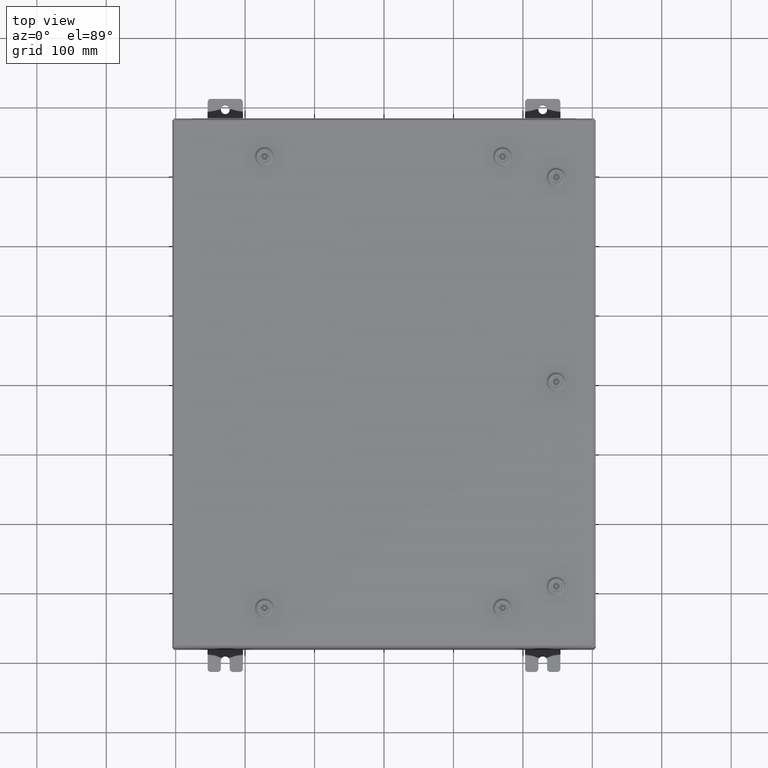
[diagram: clean part render]
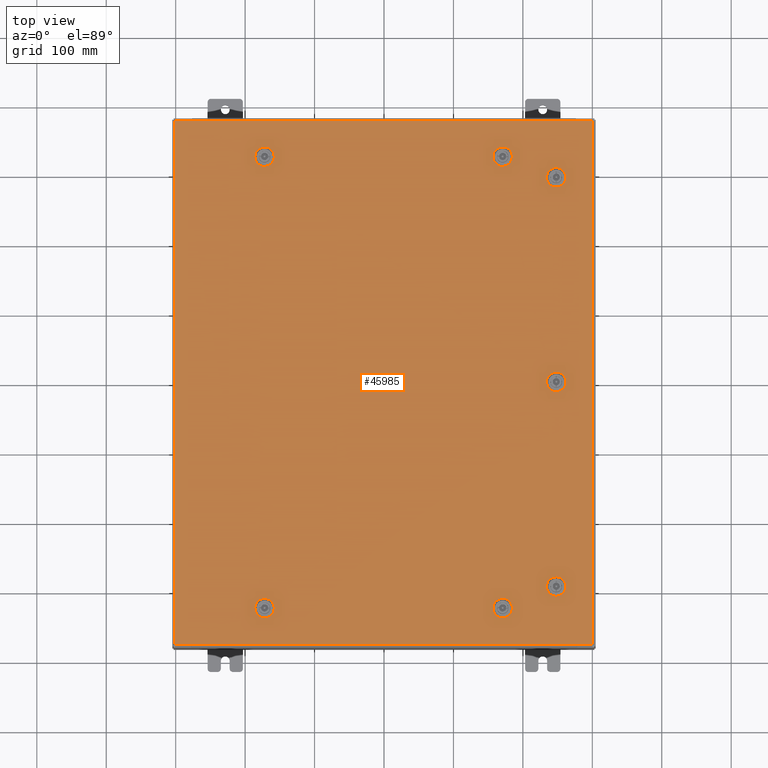
[diagram: same view with one face highlighted and labeled with its STEP entity id]
A machine part, top view. The second image highlights one B-rep face of the part: STEP entity #45985.
In plain terms, the highlighted planar face has unit normal (0, 0, -1).
Its self-contained STEP definition (entity closure, byte-faithful):
#82 = EDGE_CURVE ( 'NONE', #48384, #26278, #12245, .T. ) ;
#359 = CARTESIAN_POINT ( 'NONE',  ( -6.749999999999985800, -12.78779999999999900, -2.521317385144147400E-013 ) ) ;
#530 = VERTEX_POINT ( 'NONE', #59233 ) ;
#881 = ORIENTED_EDGE ( 'NONE', *, *, #32079, .F. ) ;
#1466 = VERTEX_POINT ( 'NONE', #47459 ) ;
#2387 = CARTESIAN_POINT ( 'NONE',  ( 6.749999999999985800, -12.78779999999999700, -2.049967404400325100E-013 ) ) ;
#2489 = DIRECTION ( 'NONE',  ( 1.000000000000000000, 0.0000000000000000000, 6.982962677686287200E-015 ) ) ;
#3176 = CIRCLE ( 'NONE', #60382, 0.4424999999999972800 ) ;
#3798 = DIRECTION ( 'NONE',  ( 0.0000000000000000000, 0.0000000000000000000, 1.000000000000000000 ) ) ;
#3951 = CARTESIAN_POINT ( 'NONE',  ( -6.749999999999984900, 12.78779999999999400, 0.0000000000000000000 ) ) ;
#4227 = AXIS2_PLACEMENT_3D ( 'NONE', #23660, #58352, #28643 ) ;
#4786 = EDGE_CURVE ( 'NONE', #39994, #11003, #5002, .T. ) ;
#4981 = VECTOR ( 'NONE', #46346, 39.37007874015748100 ) ;
#5002 = CIRCLE ( 'NONE', #50187, 0.4424999999999972800 ) ;
#5339 = DIRECTION ( 'NONE',  ( 0.0000000000000000000, 1.000000000000000000, 6.982962677686304600E-015 ) ) ;
#5466 = VECTOR ( 'NONE', #51454, 39.37007874015748100 ) ;
#5485 = AXIS2_PLACEMENT_3D ( 'NONE', #359, #34932, #5339 ) ;
#5794 = VERTEX_POINT ( 'NONE', #43162 ) ;
#6338 = EDGE_CURVE ( 'NONE', #7258, #47015, #17253, .T. ) ;
#6611 = CARTESIAN_POINT ( 'NONE',  ( 6.550547624732093500, 13.18279999999999000, -4.574222958191066700E-014 ) ) ;
#6703 = VERTEX_POINT ( 'NONE', #24556 ) ;
#6708 = AXIS2_PLACEMENT_3D ( 'NONE', #38981, #9372, #43984 ) ;
#6842 = CARTESIAN_POINT ( 'NONE',  ( 9.392800000000015400, 0.1994523752679053800, 0.0000000000000000000 ) ) ;
#6923 = CARTESIAN_POINT ( 'NONE',  ( -6.307499999999988600, -12.78779999999999900, -2.521317385144147400E-013 ) ) ;
#6958 = CARTESIAN_POINT ( 'NONE',  ( -6.550547624732093500, 13.18279999999998400, 0.0000000000000000000 ) ) ;
#7015 = EDGE_LOOP ( 'NONE', ( #14980, #42346, #57597, #63285 ) ) ;
#7258 = VERTEX_POINT ( 'NONE', #51317 ) ;
#7358 = DIRECTION ( 'NONE',  ( 1.000000000000000000, 0.0000000000000000000, 6.982962677686287200E-015 ) ) ;
#7382 = LINE ( 'NONE', #44425, #33662 ) ;
#7387 = LINE ( 'NONE', #36459, #32158 ) ;
#7422 = DIRECTION ( 'NONE',  ( 1.000000000000000000, -0.0000000000000000000, -0.0000000000000000000 ) ) ;
#7499 = ORIENTED_EDGE ( 'NONE', *, *, #11023, .T. ) ;
#7611 = FACE_BOUND ( 'NONE', #45257, .T. ) ;
#7636 = VERTEX_POINT ( 'NONE', #47134 ) ;
#8490 = VECTOR ( 'NONE', #28641, 39.37007874015748100 ) ;
#8811 = VERTEX_POINT ( 'NONE', #21408 ) ;
#8928 = DIRECTION ( 'NONE',  ( 1.000000000000000000, 0.0000000000000000000, 0.0000000000000000000 ) ) ;
#9134 = VERTEX_POINT ( 'NONE', #63610 ) ;
#9169 = FACE_BOUND ( 'NONE', #51769, .T. ) ;
#9372 = DIRECTION ( 'NONE',  ( 6.982962677686266700E-015, -0.0000000000000000000, 1.000000000000000000 ) ) ;
#9772 = ORIENTED_EDGE ( 'NONE', *, *, #10142, .F. ) ;
#10051 = LINE ( 'NONE', #48350, #8490 ) ;
#10142 = EDGE_CURVE ( 'NONE', #36488, #10847, #3176, .T. ) ;
#10553 = VERTEX_POINT ( 'NONE', #44556 ) ;
#10847 = VERTEX_POINT ( 'NONE', #22070 ) ;
#10907 = ORIENTED_EDGE ( 'NONE', *, *, #34167, .F. ) ;
#11003 = VERTEX_POINT ( 'NONE', #24829 ) ;
#11023 = EDGE_CURVE ( 'NONE', #7636, #54102, #45731, .T. ) ;
#11393 = CARTESIAN_POINT ( 'NONE',  ( 9.787800000000009600, -11.56250000000001600, -2.429631085186127900E-013 ) ) ;
#11444 = EDGE_CURVE ( 'NONE', #5794, #37747, #20151, .T. ) ;
#12245 = CIRCLE ( 'NONE', #18465, 0.4424999999999983400 ) ;
#12289 = VERTEX_POINT ( 'NONE', #22757 ) ;
#12565 = CIRCLE ( 'NONE', #13147, 0.4424999999999972800 ) ;
#12867 = CARTESIAN_POINT ( 'NONE',  ( 6.749999999999985800, -12.78779999999999700, -2.049967404400325100E-013 ) ) ;
#13052 = AXIS2_PLACEMENT_3D ( 'NONE', #11393, #46002, #16375 ) ;
#13096 = CARTESIAN_POINT ( 'NONE',  ( 6.550547624732099700, 12.39280000000000100, -4.574222958191072400E-014 ) ) ;
#13147 = AXIS2_PLACEMENT_3D ( 'NONE', #33396, #3798, #38372 ) ;
#13164 = VERTEX_POINT ( 'NONE', #19005 ) ;
#13174 = CIRCLE ( 'NONE', #21400, 0.4424999999999972800 ) ;
#13315 = ORIENTED_EDGE ( 'NONE', *, *, #11444, .F. ) ;
#13364 = CARTESIAN_POINT ( 'NONE',  ( 6.949452375267867400, -13.18279999999999300, -2.063622422052470700E-013 ) ) ;
#13554 = ORIENTED_EDGE ( 'NONE', *, *, #35107, .F. ) ;
#13626 = DIRECTION ( 'NONE',  ( 0.0000000000000000000, -1.000000000000000000, 0.0000000000000000000 ) ) ;
#13801 = CARTESIAN_POINT ( 'NONE',  ( 6.749999999999984900, 12.78779999999999700, -4.713499807438223100E-014 ) ) ;
#14106 = AXIS2_PLACEMENT_3D ( 'NONE', #46544, #16912, #51523 ) ;
#14356 = LINE ( 'NONE', #50060, #39076 ) ;
#14813 = DIRECTION ( 'NONE',  ( -1.000000000000000000, -0.0000000000000000000, -0.0000000000000000000 ) ) ;
#14980 = ORIENTED_EDGE ( 'NONE', *, *, #52313, .F. ) ;
#15139 = DIRECTION ( 'NONE',  ( -1.000000000000000000, -0.0000000000000000000, -6.982962677686265900E-015 ) ) ;
#15533 = CARTESIAN_POINT ( 'NONE',  ( 10.18280000000000200, 0.1994523752679009100, 0.0000000000000000000 ) ) ;
#15733 = LINE ( 'NONE', #57852, #53648 ) ;
#15877 = DIRECTION ( 'NONE',  ( -5.478697338139220100E-015, 1.000000000000000000, -0.0000000000000000000 ) ) ;
#15962 = DIRECTION ( 'NONE',  ( 6.982962677686266700E-015, -0.0000000000000000000, 1.000000000000000000 ) ) ;
#16245 = VERTEX_POINT ( 'NONE', #6611 ) ;
#16375 = DIRECTION ( 'NONE',  ( 0.0000000000000000000, 1.000000000000000000, 6.982962677686270700E-015 ) ) ;
#16385 = AXIS2_PLACEMENT_3D ( 'NONE', #61836, #32132, #2489 ) ;
#16912 = DIRECTION ( 'NONE',  ( -0.0000000000000000000, -6.982962677686266700E-015, 1.000000000000000000 ) ) ;
#16983 = DIRECTION ( 'NONE',  ( -1.000000000000000000, 0.0000000000000000000, 6.982962677686269100E-015 ) ) ;
#17253 = CIRCLE ( 'NONE', #62748, 0.4424999999999972800 ) ;
#17593 = CARTESIAN_POINT ( 'NONE',  ( 9.787800000000009600, -11.56250000000001600, -2.429631085186127900E-013 ) ) ;
#17813 = DIRECTION ( 'NONE',  ( 1.000000000000000000, 0.0000000000000000000, 6.982962677686287200E-015 ) ) ;
#18330 = VERTEX_POINT ( 'NONE', #31737 ) ;
#18465 = AXIS2_PLACEMENT_3D ( 'NONE', #46502, #20133, #58160 ) ;
#18487 = DIRECTION ( 'NONE',  ( 0.0000000000000000000, 0.0000000000000000000, -1.000000000000000000 ) ) ;
#18506 = VECTOR ( 'NONE', #45102, 39.37007874015748100 ) ;
#18822 = VECTOR ( 'NONE', #15139, 39.37007874015748100 ) ;
#18993 = CARTESIAN_POINT ( 'NONE',  ( -6.550547624732101500, -12.39280000000000300, -2.493734682567286900E-013 ) ) ;
#19005 = CARTESIAN_POINT ( 'NONE',  ( -6.949452375267865600, 13.18279999999999000, 0.0000000000000000000 ) ) ;
#19856 = ORIENTED_EDGE ( 'NONE', *, *, #43259, .F. ) ;
#19888 = ORIENTED_EDGE ( 'NONE', *, *, #57942, .T. ) ;
#20133 = DIRECTION ( 'NONE',  ( -0.0000000000000000000, -6.982962677686266700E-015, 1.000000000000000000 ) ) ;
#20151 = CIRCLE ( 'NONE', #32167, 0.4424999999999972800 ) ;
#20311 = CARTESIAN_POINT ( 'NONE',  ( 6.550547624732099700, 12.39280000000000100, -4.574222958191072400E-014 ) ) ;
#20338 = CARTESIAN_POINT ( 'NONE',  ( -6.550547624732093500, 13.18279999999998400, 0.0000000000000000000 ) ) ;
#20390 = ORIENTED_EDGE ( 'NONE', *, *, #42256, .F. ) ;
#20486 = CARTESIAN_POINT ( 'NONE',  ( 7.192499999999982100, 12.78779999999999700, -5.022495905925838200E-014 ) ) ;
#20524 = DIRECTION ( 'NONE',  ( 0.0000000000000000000, 0.0000000000000000000, 1.000000000000000000 ) ) ;
#20738 = LINE ( 'NONE', #20874, #57156 ) ;
#20790 = FACE_BOUND ( 'NONE', #42442, .T. ) ;
#20874 = CARTESIAN_POINT ( 'NONE',  ( 6.550547624732094400, -13.18279999999999000, -2.091477791901900700E-013 ) ) ;
#21365 = DIRECTION ( 'NONE',  ( 0.0000000000000000000, 0.0000000000000000000, 1.000000000000000000 ) ) ;
#21400 = AXIS2_PLACEMENT_3D ( 'NONE', #3951, #38533, #8928 ) ;
#21408 = CARTESIAN_POINT ( 'NONE',  ( 6.949452375267869200, 12.39280000000000100, -4.852776656685374400E-014 ) ) ;
#21714 = LINE ( 'NONE', #41467, #5466 ) ;
#21991 = VERTEX_POINT ( 'NONE', #55852 ) ;
#22070 = CARTESIAN_POINT ( 'NONE',  ( 10.18280000000000700, -0.1994523752678676000, 0.0000000000000000000 ) ) ;
#22179 = ORIENTED_EDGE ( 'NONE', *, *, #57697, .F. ) ;
#22227 = AXIS2_PLACEMENT_3D ( 'NONE', #12867, #47492, #17813 ) ;
#22266 = CARTESIAN_POINT ( 'NONE',  ( 9.787800000000007800, 1.529834876451990400E-014, 0.0000000000000000000 ) ) ;
#22296 = DIRECTION ( 'NONE',  ( 1.000000000000000000, 0.0000000000000000000, 0.0000000000000000000 ) ) ;
#22516 = VERTEX_POINT ( 'NONE', #40554 ) ;
#22566 = EDGE_CURVE ( 'NONE', #24051, #1466, #23605, .T. ) ;
#22585 = DIRECTION ( 'NONE',  ( 0.0000000000000000000, 1.000000000000000000, 6.982962677686304600E-015 ) ) ;
#22757 = CARTESIAN_POINT ( 'NONE',  ( -11.84980000000000000, 14.84980000000000000, -2.048885995248197400E-016 ) ) ;
#23188 = DIRECTION ( 'NONE',  ( 0.0000000000000000000, 0.0000000000000000000, 1.000000000000000000 ) ) ;
#23511 = LINE ( 'NONE', #15533, #63074 ) ;
#23605 = CIRCLE ( 'NONE', #13052, 0.4424999999999983400 ) ;
#23660 = CARTESIAN_POINT ( 'NONE',  ( 6.749999999999984900, 12.78779999999999700, -4.713499807438223100E-014 ) ) ;
#23980 = CARTESIAN_POINT ( 'NONE',  ( -6.550547624732094400, -13.18279999999999100, -2.548900087721007400E-013 ) ) ;
#24051 = VERTEX_POINT ( 'NONE', #38323 ) ;
#24176 = CARTESIAN_POINT ( 'NONE',  ( 10.18280000000000600, -11.76195237526789900, -2.443558770110843000E-013 ) ) ;
#24556 = CARTESIAN_POINT ( 'NONE',  ( -6.550547624732094400, -13.18279999999999100, -2.548900087721007400E-013 ) ) ;
#24668 = ORIENTED_EDGE ( 'NONE', *, *, #59551, .F. ) ;
#24829 = CARTESIAN_POINT ( 'NONE',  ( 6.949452375267865600, 13.18279999999999300, 0.0000000000000000000 ) ) ;
#25088 = CIRCLE ( 'NONE', #5485, 0.4424999999999961700 ) ;
#25232 = ORIENTED_EDGE ( 'NONE', *, *, #6338, .F. ) ;
#25638 = VECTOR ( 'NONE', #51214, 39.37007874015748100 ) ;
#25847 = EDGE_CURVE ( 'NONE', #32981, #30835, #12565, .T. ) ;
#26048 = CARTESIAN_POINT ( 'NONE',  ( -6.949452375267867400, -13.18279999999999500, 0.0000000000000000000 ) ) ;
#26204 = CARTESIAN_POINT ( 'NONE',  ( -6.550547624732099700, 12.39279999999999800, 0.0000000000000000000 ) ) ;
#26278 = VERTEX_POINT ( 'NONE', #26048 ) ;
#26322 = DIRECTION ( 'NONE',  ( -1.000000000000000000, -1.095739467627835000E-014, 6.982962677686269100E-015 ) ) ;
#26323 = ORIENTED_EDGE ( 'NONE', *, *, #48693, .F. ) ;
#26362 = ORIENTED_EDGE ( 'NONE', *, *, #44838, .T. ) ;
#26465 = CARTESIAN_POINT ( 'NONE',  ( 9.787800000000007800, 1.529834876451990400E-014, 0.0000000000000000000 ) ) ;
#26881 = CARTESIAN_POINT ( 'NONE',  ( -6.949452375267869200, -12.39280000000000100, -2.493734682567286900E-013 ) ) ;
#27191 = LINE ( 'NONE', #6842, #25638 ) ;
#27501 = EDGE_CURVE ( 'NONE', #21991, #37275, #20738, .T. ) ;
#27862 = CARTESIAN_POINT ( 'NONE',  ( 9.392800000000015400, 11.76195237526790500, 0.0000000000000000000 ) ) ;
#28249 = CARTESIAN_POINT ( 'NONE',  ( 0.0000000000000000000, 0.0000000000000000000, 0.0000000000000000000 ) ) ;
#28292 = CIRCLE ( 'NONE', #41437, 0.4424999999999972800 ) ;
#28319 = ORIENTED_EDGE ( 'NONE', *, *, #82, .F. ) ;
#28443 = DIRECTION ( 'NONE',  ( 1.000000000000000000, -0.0000000000000000000, -0.0000000000000000000 ) ) ;
#28641 = DIRECTION ( 'NONE',  ( 8.218046007208784700E-015, -1.000000000000000000, -6.982962677686345600E-015 ) ) ;
#28643 = DIRECTION ( 'NONE',  ( -1.000000000000000000, 0.0000000000000000000, 6.982962677686269100E-015 ) ) ;
#29163 = DIRECTION ( 'NONE',  ( 5.478697338139220100E-015, 1.000000000000000000, 6.982962677686306200E-015 ) ) ;
#29309 = VERTEX_POINT ( 'NONE', #13096 ) ;
#29968 = LINE ( 'NONE', #37037, #41562 ) ;
#30023 = EDGE_CURVE ( 'NONE', #12289, #7636, #59359, .T. ) ;
#30482 = EDGE_CURVE ( 'NONE', #11003, #16245, #7387, .T. ) ;
#30605 = ORIENTED_EDGE ( 'NONE', *, *, #38093, .F. ) ;
#30835 = VERTEX_POINT ( 'NONE', #52525 ) ;
#31082 = CIRCLE ( 'NONE', #54305, 0.4424999999999972800 ) ;
#31264 = CIRCLE ( 'NONE', #56585, 0.4424999999999961700 ) ;
#31444 = DIRECTION ( 'NONE',  ( 1.000000000000000000, 0.0000000000000000000, 0.0000000000000000000 ) ) ;
#31737 = CARTESIAN_POINT ( 'NONE',  ( 10.18280000000000600, -11.76195237526789900, -2.443558770110843000E-013 ) ) ;
#31740 = EDGE_CURVE ( 'NONE', #8811, #39994, #62326, .T. ) ;
#32079 = EDGE_CURVE ( 'NONE', #46889, #56828, #25088, .T. ) ;
#32132 = DIRECTION ( 'NONE',  ( -6.982962677686266700E-015, -6.982962677686266700E-015, 1.000000000000000000 ) ) ;
#32158 = VECTOR ( 'NONE', #26322, 39.37007874015748100 ) ;
#32167 = AXIS2_PLACEMENT_3D ( 'NONE', #2387, #36972, #7358 ) ;
#32482 = EDGE_CURVE ( 'NONE', #16245, #29309, #52161, .T. ) ;
#32727 = CIRCLE ( 'NONE', #16385, 0.4424999999999972800 ) ;
#32981 = VERTEX_POINT ( 'NONE', #35733 ) ;
#33296 = VERTEX_POINT ( 'NONE', #20338 ) ;
#33375 = CARTESIAN_POINT ( 'NONE',  ( -11.84980000000000000, -14.84979999999999500, -2.048885995248197400E-016 ) ) ;
#33396 = CARTESIAN_POINT ( 'NONE',  ( 9.787800000000007800, 11.56250000000001600, 0.0000000000000000000 ) ) ;
#33600 = VECTOR ( 'NONE', #35212, 39.37007874015748100 ) ;
#33662 = VECTOR ( 'NONE', #14813, 39.37007874015748100 ) ;
#33903 = FACE_BOUND ( 'NONE', #41279, .T. ) ;
#34072 = CARTESIAN_POINT ( 'NONE',  ( 11.84980000000000000, 14.84980000000000200, 8.878505979408856000E-016 ) ) ;
#34167 = EDGE_CURVE ( 'NONE', #13164, #530, #40394, .T. ) ;
#34320 = ORIENTED_EDGE ( 'NONE', *, *, #62316, .F. ) ;
#34932 = DIRECTION ( 'NONE',  ( -0.0000000000000000000, -6.982962677686266700E-015, 1.000000000000000000 ) ) ;
#35107 = EDGE_CURVE ( 'NONE', #22516, #36488, #27191, .T. ) ;
#35212 = DIRECTION ( 'NONE',  ( 1.000000000000000000, 0.0000000000000000000, -6.982962677686248600E-015 ) ) ;
#35531 = LINE ( 'NONE', #24176, #58840 ) ;
#35733 = CARTESIAN_POINT ( 'NONE',  ( 9.392800000000011800, 11.36304762473213300, 0.0000000000000000000 ) ) ;
#36459 = CARTESIAN_POINT ( 'NONE',  ( 6.550547624732093500, 13.18279999999999000, -4.574222958191066700E-014 ) ) ;
#36480 = VERTEX_POINT ( 'NONE', #34072 ) ;
#36488 = VERTEX_POINT ( 'NONE', #39060 ) ;
#36972 = DIRECTION ( 'NONE',  ( -6.982962677686266700E-015, -6.982962677686266700E-015, 1.000000000000000000 ) ) ;
#37037 = CARTESIAN_POINT ( 'NONE',  ( -6.550547624732099700, 12.39279999999999800, 0.0000000000000000000 ) ) ;
#37259 = LINE ( 'NONE', #23980, #62129 ) ;
#37275 = VERTEX_POINT ( 'NONE', #13364 ) ;
#37747 = VERTEX_POINT ( 'NONE', #39432 ) ;
#38093 = EDGE_CURVE ( 'NONE', #10553, #33296, #13174, .T. ) ;
#38159 = PLANE ( 'NONE',  #41921 ) ;
#38323 = CARTESIAN_POINT ( 'NONE',  ( 10.18280000000000700, -11.36304762473213100, -2.415703400261412700E-013 ) ) ;
#38372 = DIRECTION ( 'NONE',  ( 1.000000000000000000, 0.0000000000000000000, 0.0000000000000000000 ) ) ;
#38533 = DIRECTION ( 'NONE',  ( 0.0000000000000000000, 0.0000000000000000000, 1.000000000000000000 ) ) ;
#38744 = ORIENTED_EDGE ( 'NONE', *, *, #30482, .F. ) ;
#38981 = CARTESIAN_POINT ( 'NONE',  ( 6.749999999999984900, 12.78779999999999700, -4.713499807438223100E-014 ) ) ;
#39060 = CARTESIAN_POINT ( 'NONE',  ( 9.392800000000011800, -0.1994523752678671000, 0.0000000000000000000 ) ) ;
#39076 = VECTOR ( 'NONE', #15877, 39.37007874015748100 ) ;
#39432 = CARTESIAN_POINT ( 'NONE',  ( 6.949452375267869200, -12.39280000000000100, 0.0000000000000000000 ) ) ;
#39573 = ORIENTED_EDGE ( 'NONE', *, *, #52095, .F. ) ;
#39923 = EDGE_CURVE ( 'NONE', #37747, #9134, #46732, .T. ) ;
#39994 = VERTEX_POINT ( 'NONE', #20486 ) ;
#40016 = EDGE_LOOP ( 'NONE', ( #53506, #10907, #24668, #30605, #56634 ) ) ;
#40077 = CARTESIAN_POINT ( 'NONE',  ( 11.84980000000000000, -14.84979999999999300, -2.048885995248197400E-016 ) ) ;
#40394 = CIRCLE ( 'NONE', #45753, 0.4424999999999972800 ) ;
#40554 = CARTESIAN_POINT ( 'NONE',  ( 9.392800000000015400, 0.1994523752679053200, 0.0000000000000000000 ) ) ;
#41279 = EDGE_LOOP ( 'NONE', ( #55493, #13315, #39573, #55368, #34320 ) ) ;
#41437 = AXIS2_PLACEMENT_3D ( 'NONE', #26465, #61173, #31444 ) ;
#41467 = CARTESIAN_POINT ( 'NONE',  ( -6.550547624732101500, -12.39280000000000300, -2.493734682567286900E-013 ) ) ;
#41562 = VECTOR ( 'NONE', #7422, 39.37007874015748100 ) ;
#41921 = AXIS2_PLACEMENT_3D ( 'NONE', #28249, #18487, #53142 ) ;
#42256 = EDGE_CURVE ( 'NONE', #26278, #6703, #37259, .T. ) ;
#42346 = ORIENTED_EDGE ( 'NONE', *, *, #22566, .F. ) ;
#42442 = EDGE_LOOP ( 'NONE', ( #20390, #28319, #52772, #881, #19856 ) ) ;
#42471 = EDGE_CURVE ( 'NONE', #45596, #10553, #31082, .T. ) ;
#42624 = ORIENTED_EDGE ( 'NONE', *, *, #32482, .F. ) ;
#42712 = EDGE_LOOP ( 'NONE', ( #7499, #26362, #19888, #44010 ) ) ;
#42891 = LINE ( 'NONE', #6958, #4981 ) ;
#43076 = DIRECTION ( 'NONE',  ( -8.218046007208784700E-015, -1.000000000000000000, 0.0000000000000000000 ) ) ;
#43162 = CARTESIAN_POINT ( 'NONE',  ( 7.192499999999983000, -12.78779999999999700, -2.019067794551563600E-013 ) ) ;
#43259 = EDGE_CURVE ( 'NONE', #6703, #46889, #63613, .T. ) ;
#43832 = ORIENTED_EDGE ( 'NONE', *, *, #4786, .F. ) ;
#43867 = EDGE_CURVE ( 'NONE', #56828, #48384, #21714, .T. ) ;
#43984 = DIRECTION ( 'NONE',  ( -1.000000000000000000, 0.0000000000000000000, 6.982962677686269100E-015 ) ) ;
#44010 = ORIENTED_EDGE ( 'NONE', *, *, #30023, .T. ) ;
#44389 = VERTEX_POINT ( 'NONE', #52493 ) ;
#44425 = CARTESIAN_POINT ( 'NONE',  ( 11.84980000000000000, 14.84980000000000200, 8.878505979408856000E-016 ) ) ;
#44556 = CARTESIAN_POINT ( 'NONE',  ( -6.307499999999987700, 12.78779999999999400, 0.0000000000000000000 ) ) ;
#44742 = CARTESIAN_POINT ( 'NONE',  ( 6.550547624732101500, -12.39280000000000100, -2.036312386748179800E-013 ) ) ;
#44838 = EDGE_CURVE ( 'NONE', #54102, #36480, #56502, .T. ) ;
#44920 = DIRECTION ( 'NONE',  ( -5.478697338139235000E-015, 1.000000000000000000, -0.0000000000000000000 ) ) ;
#45102 = DIRECTION ( 'NONE',  ( 0.0000000000000000000, 1.000000000000000000, 0.0000000000000000000 ) ) ;
#45257 = EDGE_LOOP ( 'NONE', ( #38744, #43832, #52391, #63016, #42624 ) ) ;
#45557 = FACE_OUTER_BOUND ( 'NONE', #42712, .T. ) ;
#45596 = VERTEX_POINT ( 'NONE', #26204 ) ;
#45731 = LINE ( 'NONE', #33375, #54253 ) ;
#45753 = AXIS2_PLACEMENT_3D ( 'NONE', #52840, #23188, #57869 ) ;
#45985 = ADVANCED_FACE ( 'NONE', ( #47114, #9169, #60343, #33903, #20790, #7611, #58777, #45557 ), #38159, .F. ) ;
#46002 = DIRECTION ( 'NONE',  ( -0.0000000000000000000, -6.982962677686266700E-015, 1.000000000000000000 ) ) ;
#46346 = DIRECTION ( 'NONE',  ( -1.000000000000000000, 1.095739467627835000E-014, 0.0000000000000000000 ) ) ;
#46502 = CARTESIAN_POINT ( 'NONE',  ( -6.749999999999985800, -12.78779999999999900, -2.521317385144147400E-013 ) ) ;
#46544 = CARTESIAN_POINT ( 'NONE',  ( -6.749999999999985800, -12.78779999999999900, -2.521317385144147400E-013 ) ) ;
#46732 = LINE ( 'NONE', #44742, #18822 ) ;
#46752 = ORIENTED_EDGE ( 'NONE', *, *, #58214, .F. ) ;
#46889 = VERTEX_POINT ( 'NONE', #6923 ) ;
#47015 = VERTEX_POINT ( 'NONE', #27862 ) ;
#47114 = FACE_BOUND ( 'NONE', #7015, .T. ) ;
#47134 = CARTESIAN_POINT ( 'NONE',  ( -11.84980000000000000, -14.84979999999999500, -2.048885995248197400E-016 ) ) ;
#47459 = CARTESIAN_POINT ( 'NONE',  ( 9.392800000000013600, -11.36304762473213300, 0.0000000000000000000 ) ) ;
#47492 = DIRECTION ( 'NONE',  ( -6.982962677686266700E-015, -6.982962677686266700E-015, 1.000000000000000000 ) ) ;
#47825 = ORIENTED_EDGE ( 'NONE', *, *, #59851, .F. ) ;
#48252 = CARTESIAN_POINT ( 'NONE',  ( -11.84980000000000000, 14.84980000000000000, -2.048885995248197400E-016 ) ) ;
#48350 = CARTESIAN_POINT ( 'NONE',  ( 9.392800000000017100, -11.76195237526790500, -2.443558770110843500E-013 ) ) ;
#48384 = VERTEX_POINT ( 'NONE', #26881 ) ;
#48669 = DIRECTION ( 'NONE',  ( 1.000000000000000000, 1.095739467627835000E-014, 7.785697190085976300E-029 ) ) ;
#48677 = CARTESIAN_POINT ( 'NONE',  ( 9.787800000000007800, 11.56250000000001600, 0.0000000000000000000 ) ) ;
#48693 = EDGE_CURVE ( 'NONE', #47015, #32981, #15733, .T. ) ;
#50060 = CARTESIAN_POINT ( 'NONE',  ( 10.18280000000000200, 11.76195237526789900, 0.0000000000000000000 ) ) ;
#50187 = AXIS2_PLACEMENT_3D ( 'NONE', #13801, #15962, #16983 ) ;
#51022 = CARTESIAN_POINT ( 'NONE',  ( -6.749999999999984900, 12.78779999999999400, 0.0000000000000000000 ) ) ;
#51214 = DIRECTION ( 'NONE',  ( -8.218046007208770500E-015, -1.000000000000000000, 0.0000000000000000000 ) ) ;
#51317 = CARTESIAN_POINT ( 'NONE',  ( 10.18280000000000200, 11.76195237526789900, 0.0000000000000000000 ) ) ;
#51454 = DIRECTION ( 'NONE',  ( -1.000000000000000000, 5.478697338139250000E-015, 7.785697190086082800E-029 ) ) ;
#51523 = DIRECTION ( 'NONE',  ( 0.0000000000000000000, 1.000000000000000000, 6.982962677686304600E-015 ) ) ;
#51769 = EDGE_LOOP ( 'NONE', ( #46752, #60180, #26323, #25232 ) ) ;
#52095 = EDGE_CURVE ( 'NONE', #37275, #5794, #55771, .T. ) ;
#52161 = CIRCLE ( 'NONE', #4227, 0.4424999999999972800 ) ;
#52247 = DIRECTION ( 'NONE',  ( -0.0000000000000000000, -6.982962677686266700E-015, 1.000000000000000000 ) ) ;
#52313 = EDGE_CURVE ( 'NONE', #1466, #60111, #10051, .T. ) ;
#52391 = ORIENTED_EDGE ( 'NONE', *, *, #31740, .F. ) ;
#52493 = CARTESIAN_POINT ( 'NONE',  ( 10.18280000000000200, 0.1994523752679009100, 0.0000000000000000000 ) ) ;
#52525 = CARTESIAN_POINT ( 'NONE',  ( 10.18280000000000600, 11.36304762473213100, 0.0000000000000000000 ) ) ;
#52772 = ORIENTED_EDGE ( 'NONE', *, *, #43867, .F. ) ;
#52840 = CARTESIAN_POINT ( 'NONE',  ( -6.749999999999984900, 12.78779999999999400, 0.0000000000000000000 ) ) ;
#52865 = EDGE_CURVE ( 'NONE', #18330, #24051, #35531, .T. ) ;
#53142 = DIRECTION ( 'NONE',  ( -1.000000000000000000, 0.0000000000000000000, -0.0000000000000000000 ) ) ;
#53506 = ORIENTED_EDGE ( 'NONE', *, *, #55448, .F. ) ;
#53648 = VECTOR ( 'NONE', #43076, 39.37007874015748100 ) ;
#54102 = VERTEX_POINT ( 'NONE', #61139 ) ;
#54253 = VECTOR ( 'NONE', #28443, 39.37007874015748100 ) ;
#54305 = AXIS2_PLACEMENT_3D ( 'NONE', #51022, #21365, #56011 ) ;
#55368 = ORIENTED_EDGE ( 'NONE', *, *, #27501, .F. ) ;
#55448 = EDGE_CURVE ( 'NONE', #530, #45596, #29968, .T. ) ;
#55493 = ORIENTED_EDGE ( 'NONE', *, *, #39923, .F. ) ;
#55771 = CIRCLE ( 'NONE', #22227, 0.4424999999999972800 ) ;
#55852 = CARTESIAN_POINT ( 'NONE',  ( 6.550547624732094400, -13.18279999999999000, -2.091477791901901000E-013 ) ) ;
#56011 = DIRECTION ( 'NONE',  ( 1.000000000000000000, 0.0000000000000000000, 0.0000000000000000000 ) ) ;
#56502 = LINE ( 'NONE', #40077, #18506 ) ;
#56585 = AXIS2_PLACEMENT_3D ( 'NONE', #17593, #52247, #22585 ) ;
#56634 = ORIENTED_EDGE ( 'NONE', *, *, #42471, .F. ) ;
#56828 = VERTEX_POINT ( 'NONE', #18993 ) ;
#57156 = VECTOR ( 'NONE', #60540, 39.37007874015748100 ) ;
#57597 = ORIENTED_EDGE ( 'NONE', *, *, #52865, .F. ) ;
#57697 = EDGE_CURVE ( 'NONE', #44389, #22516, #28292, .T. ) ;
#57781 = VECTOR ( 'NONE', #13626, 39.37007874015748100 ) ;
#57852 = CARTESIAN_POINT ( 'NONE',  ( 9.392800000000015400, 11.76195237526790500, 0.0000000000000000000 ) ) ;
#57869 = DIRECTION ( 'NONE',  ( 1.000000000000000000, 0.0000000000000000000, 0.0000000000000000000 ) ) ;
#57942 = EDGE_CURVE ( 'NONE', #36480, #12289, #7382, .T. ) ;
#58160 = DIRECTION ( 'NONE',  ( 0.0000000000000000000, 1.000000000000000000, 6.982962677686270700E-015 ) ) ;
#58214 = EDGE_CURVE ( 'NONE', #30835, #7258, #14356, .T. ) ;
#58352 = DIRECTION ( 'NONE',  ( 6.982962677686266700E-015, -0.0000000000000000000, 1.000000000000000000 ) ) ;
#58537 = EDGE_LOOP ( 'NONE', ( #47825, #9772, #13554, #22179 ) ) ;
#58777 = FACE_BOUND ( 'NONE', #40016, .T. ) ;
#58840 = VECTOR ( 'NONE', #29163, 39.37007874015748100 ) ;
#58873 = EDGE_CURVE ( 'NONE', #29309, #8811, #60037, .T. ) ;
#59233 = CARTESIAN_POINT ( 'NONE',  ( -6.949452375267869200, 12.39279999999999800, 0.0000000000000000000 ) ) ;
#59359 = LINE ( 'NONE', #48252, #57781 ) ;
#59551 = EDGE_CURVE ( 'NONE', #33296, #13164, #42891, .T. ) ;
#59759 = DIRECTION ( 'NONE',  ( 0.0000000000000000000, 0.0000000000000000000, 1.000000000000000000 ) ) ;
#59851 = EDGE_CURVE ( 'NONE', #10847, #44389, #23511, .T. ) ;
#60037 = LINE ( 'NONE', #20311, #33600 ) ;
#60111 = VERTEX_POINT ( 'NONE', #61956 ) ;
#60180 = ORIENTED_EDGE ( 'NONE', *, *, #25847, .F. ) ;
#60343 = FACE_BOUND ( 'NONE', #58537, .T. ) ;
#60382 = AXIS2_PLACEMENT_3D ( 'NONE', #22266, #59759, #60615 ) ;
#60540 = DIRECTION ( 'NONE',  ( 1.000000000000000000, -1.095739467627835000E-014, 6.982962677686171300E-015 ) ) ;
#60615 = DIRECTION ( 'NONE',  ( 1.000000000000000000, 0.0000000000000000000, 0.0000000000000000000 ) ) ;
#61139 = CARTESIAN_POINT ( 'NONE',  ( 11.84980000000000000, -14.84979999999999300, -2.048885995248197400E-016 ) ) ;
#61173 = DIRECTION ( 'NONE',  ( 0.0000000000000000000, 0.0000000000000000000, 1.000000000000000000 ) ) ;
#61489 = EDGE_CURVE ( 'NONE', #60111, #18330, #31264, .T. ) ;
#61836 = CARTESIAN_POINT ( 'NONE',  ( 6.749999999999985800, -12.78779999999999700, -2.049967404400325100E-013 ) ) ;
#61956 = CARTESIAN_POINT ( 'NONE',  ( 9.392800000000017100, -11.76195237526790500, -2.443558770110843000E-013 ) ) ;
#62129 = VECTOR ( 'NONE', #48669, 39.37007874015748100 ) ;
#62316 = EDGE_CURVE ( 'NONE', #9134, #21991, #32727, .T. ) ;
#62326 = CIRCLE ( 'NONE', #6708, 0.4424999999999972800 ) ;
#62748 = AXIS2_PLACEMENT_3D ( 'NONE', #48677, #20524, #22296 ) ;
#63016 = ORIENTED_EDGE ( 'NONE', *, *, #58873, .F. ) ;
#63074 = VECTOR ( 'NONE', #44920, 39.37007874015748100 ) ;
#63285 = ORIENTED_EDGE ( 'NONE', *, *, #61489, .F. ) ;
#63610 = CARTESIAN_POINT ( 'NONE',  ( 6.550547624732101500, -12.39280000000000100, -2.036312386748179800E-013 ) ) ;
#63613 = CIRCLE ( 'NONE', #14106, 0.4424999999999961700 ) ;